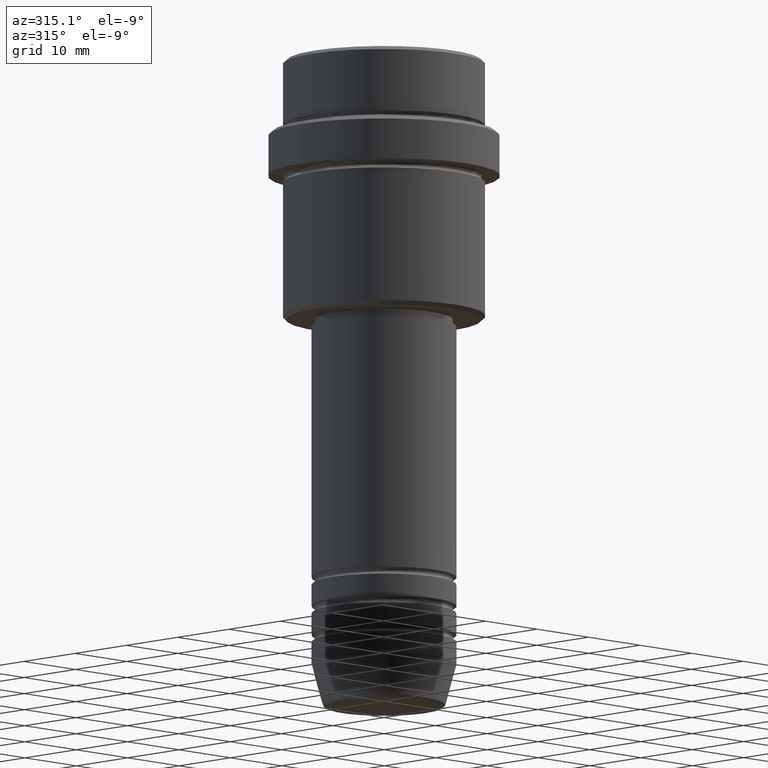
[diagram: clean part render]
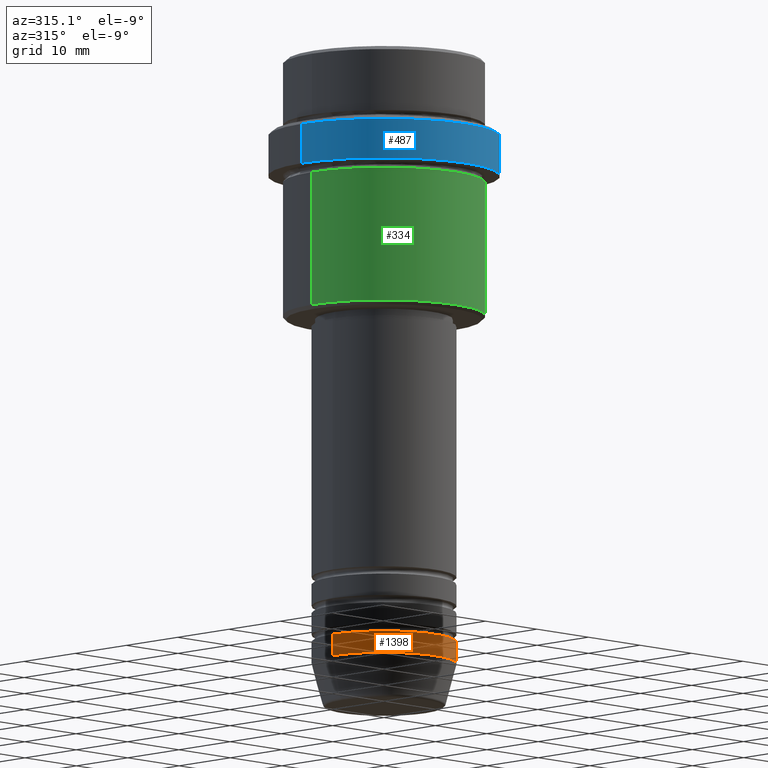
[diagram: same view with three faces highlighted in distinct colors, each labeled with its STEP entity id]
A machine part, auxiliary view with three faces highlighted in distinct colors.
Their STEP definitions:

[orange] entity #1398 — the highlighted cylindrical surface (partial cylindrical patch) has radius 10 mm, axis along (-0, -0, 1).
#60 = FACE_OUTER_BOUND ( 'NONE', #998, .T. ) ;
#61 = ORIENTED_EDGE ( 'NONE', *, *, #520, .T. ) ;
#113 = DIRECTION ( 'NONE',  ( 1.000000000000000000, 0.000000000000000000, 0.000000000000000000 ) ) ;
#122 = EDGE_CURVE ( 'NONE', #157, #1201, #692, .T. ) ;
#143 = EDGE_CURVE ( 'NONE', #157, #1251, #562, .T. ) ;
#157 = VERTEX_POINT ( 'NONE', #582 ) ;
#185 = DIRECTION ( 'NONE',  ( 1.000000000000000000, 0.000000000000000000, 0.000000000000000000 ) ) ;
#197 = VECTOR ( 'NONE', #1012, 1000.000000000000000 ) ;
#495 = CYLINDRICAL_SURFACE ( 'NONE', #849, 10.00000000000000000 ) ;
#505 = ORIENTED_EDGE ( 'NONE', *, *, #1019, .F. ) ;
#520 = EDGE_CURVE ( 'NONE', #1201, #704, #608, .T. ) ;
#562 = LINE ( 'NONE', #589, #741 ) ;
#576 = CIRCLE ( 'NONE', #746, 10.00000000000000000 ) ;
#582 = CARTESIAN_POINT ( 'NONE',  ( -10.00000000000000000, 1.224646799147353256E-15, -84.00000000000000000 ) ) ;
#589 = CARTESIAN_POINT ( 'NONE',  ( -10.00000000000000000, 1.224646799147353256E-15, 0.000000000000000000 ) ) ;
#608 = LINE ( 'NONE', #1121, #197 ) ;
#609 = CARTESIAN_POINT ( 'NONE',  ( 0.000000000000000000, 0.000000000000000000, 0.000000000000000000 ) ) ;
#632 = CARTESIAN_POINT ( 'NONE',  ( 10.00000000000000000, 0.000000000000000000, -81.00000000000000000 ) ) ;
#667 = CARTESIAN_POINT ( 'NONE',  ( 0.000000000000000000, 0.000000000000000000, -84.00000000000000000 ) ) ;
#692 = CIRCLE ( 'NONE', #804, 10.00000000000000000 ) ;
#698 = DIRECTION ( 'NONE',  ( 1.000000000000000000, 0.000000000000000000, 0.000000000000000000 ) ) ;
#704 = VERTEX_POINT ( 'NONE', #632 ) ;
#741 = VECTOR ( 'NONE', #809, 1000.000000000000000 ) ;
#746 = AXIS2_PLACEMENT_3D ( 'NONE', #865, #1301, #698 ) ;
#804 = AXIS2_PLACEMENT_3D ( 'NONE', #667, #1190, #113 ) ;
#809 = DIRECTION ( 'NONE',  ( -0.000000000000000000, -0.000000000000000000, 1.000000000000000000 ) ) ;
#849 = AXIS2_PLACEMENT_3D ( 'NONE', #609, #1327, #185 ) ;
#865 = CARTESIAN_POINT ( 'NONE',  ( 0.000000000000000000, 0.000000000000000000, -81.00000000000000000 ) ) ;
#941 = CARTESIAN_POINT ( 'NONE',  ( 10.00000000000000000, 0.000000000000000000, -84.00000000000000000 ) ) ;
#998 = EDGE_LOOP ( 'NONE', ( #1162, #1144, #61, #505 ) ) ;
#1012 = DIRECTION ( 'NONE',  ( -0.000000000000000000, -0.000000000000000000, 1.000000000000000000 ) ) ;
#1019 = EDGE_CURVE ( 'NONE', #1251, #704, #576, .T. ) ;
#1086 = CARTESIAN_POINT ( 'NONE',  ( -10.00000000000000000, 1.224646799147353256E-15, -81.00000000000000000 ) ) ;
#1121 = CARTESIAN_POINT ( 'NONE',  ( 10.00000000000000000, 0.000000000000000000, 0.000000000000000000 ) ) ;
#1144 = ORIENTED_EDGE ( 'NONE', *, *, #122, .T. ) ;
#1162 = ORIENTED_EDGE ( 'NONE', *, *, #143, .F. ) ;
#1190 = DIRECTION ( 'NONE',  ( -0.000000000000000000, -0.000000000000000000, 1.000000000000000000 ) ) ;
#1201 = VERTEX_POINT ( 'NONE', #941 ) ;
#1251 = VERTEX_POINT ( 'NONE', #1086 ) ;
#1301 = DIRECTION ( 'NONE',  ( -0.000000000000000000, -0.000000000000000000, 1.000000000000000000 ) ) ;
#1327 = DIRECTION ( 'NONE',  ( -0.000000000000000000, -0.000000000000000000, 1.000000000000000000 ) ) ;
#1398 = ADVANCED_FACE ( 'NONE', ( #60 ), #495, .T. ) ;

[blue] entity #487 — the highlighted cylindrical surface (partial cylindrical patch) has radius 16 mm, axis along (-0, -0, 1).
#7 = AXIS2_PLACEMENT_3D ( 'NONE', #1011, #465, #700 ) ;
#41 = VERTEX_POINT ( 'NONE', #992 ) ;
#78 = EDGE_CURVE ( 'NONE', #171, #1296, #355, .T. ) ;
#147 = VECTOR ( 'NONE', #434, 1000.000000000000000 ) ;
#149 = AXIS2_PLACEMENT_3D ( 'NONE', #921, #1260, #934 ) ;
#171 = VERTEX_POINT ( 'NONE', #281 ) ;
#181 = CARTESIAN_POINT ( 'NONE',  ( -15.99999999999999289, 1.959434878635764343E-15, -16.00000000000000000 ) ) ;
#228 = CARTESIAN_POINT ( 'NONE',  ( 15.99999999999999289, 0.000000000000000000, 0.000000000000000000 ) ) ;
#252 = DIRECTION ( 'NONE',  ( 0.000000000000000000, 0.000000000000000000, -1.000000000000000000 ) ) ;
#281 = CARTESIAN_POINT ( 'NONE',  ( 15.99999999999999289, 0.000000000000000000, -16.00000000000000000 ) ) ;
#353 = VECTOR ( 'NONE', #585, 1000.000000000000000 ) ;
#355 = LINE ( 'NONE', #228, #147 ) ;
#381 = ORIENTED_EDGE ( 'NONE', *, *, #878, .F. ) ;
#401 = ORIENTED_EDGE ( 'NONE', *, *, #930, .T. ) ;
#434 = DIRECTION ( 'NONE',  ( -0.000000000000000000, -0.000000000000000000, 1.000000000000000000 ) ) ;
#439 = CIRCLE ( 'NONE', #7, 15.99999999999999289 ) ;
#465 = DIRECTION ( 'NONE',  ( -0.000000000000000000, -0.000000000000000000, 1.000000000000000000 ) ) ;
#487 = ADVANCED_FACE ( 'NONE', ( #1378 ), #1356, .T. ) ;
#545 = CARTESIAN_POINT ( 'NONE',  ( 15.99999999999999289, 0.000000000000000000, -10.49999999999998224 ) ) ;
#552 = CIRCLE ( 'NONE', #1262, 15.99999999999999289 ) ;
#585 = DIRECTION ( 'NONE',  ( -0.000000000000000000, -0.000000000000000000, 1.000000000000000000 ) ) ;
#700 = DIRECTION ( 'NONE',  ( 1.000000000000000000, 0.000000000000000000, 0.000000000000000000 ) ) ;
#712 = EDGE_CURVE ( 'NONE', #1296, #41, #552, .T. ) ;
#878 = EDGE_CURVE ( 'NONE', #1226, #41, #1223, .T. ) ;
#921 = CARTESIAN_POINT ( 'NONE',  ( 0.000000000000000000, 0.000000000000000000, 0.000000000000000000 ) ) ;
#930 = EDGE_CURVE ( 'NONE', #1226, #171, #439, .T. ) ;
#934 = DIRECTION ( 'NONE',  ( 1.000000000000000000, 0.000000000000000000, 0.000000000000000000 ) ) ;
#969 = CARTESIAN_POINT ( 'NONE',  ( 0.000000000000000000, 0.000000000000000000, -10.49999999999998224 ) ) ;
#992 = CARTESIAN_POINT ( 'NONE',  ( -15.99999999999999289, 1.959434878635764343E-15, -10.49999999999998224 ) ) ;
#1011 = CARTESIAN_POINT ( 'NONE',  ( 0.000000000000000000, 0.000000000000000000, -16.00000000000000000 ) ) ;
#1099 = DIRECTION ( 'NONE',  ( 1.000000000000000000, 0.000000000000000000, 0.000000000000000000 ) ) ;
#1151 = CARTESIAN_POINT ( 'NONE',  ( -15.99999999999999289, 1.959434878635764343E-15, 0.000000000000000000 ) ) ;
#1186 = ORIENTED_EDGE ( 'NONE', *, *, #78, .T. ) ;
#1223 = LINE ( 'NONE', #1151, #353 ) ;
#1226 = VERTEX_POINT ( 'NONE', #181 ) ;
#1260 = DIRECTION ( 'NONE',  ( -0.000000000000000000, -0.000000000000000000, 1.000000000000000000 ) ) ;
#1262 = AXIS2_PLACEMENT_3D ( 'NONE', #969, #252, #1099 ) ;
#1296 = VERTEX_POINT ( 'NONE', #545 ) ;
#1326 = EDGE_LOOP ( 'NONE', ( #381, #401, #1186, #1358 ) ) ;
#1356 = CYLINDRICAL_SURFACE ( 'NONE', #149, 15.99999999999999289 ) ;
#1358 = ORIENTED_EDGE ( 'NONE', *, *, #712, .T. ) ;
#1378 = FACE_OUTER_BOUND ( 'NONE', #1326, .T. ) ;

[green] entity #334 — the highlighted cylindrical surface (partial cylindrical patch) has radius 14 mm, axis along (-0, -0, 1).
#108 = EDGE_CURVE ( 'NONE', #308, #361, #1214, .T. ) ;
#145 = VERTEX_POINT ( 'NONE', #1219 ) ;
#186 = CARTESIAN_POINT ( 'NONE',  ( 0.000000000000000000, 0.000000000000000000, 0.000000000000000000 ) ) ;
#233 = CARTESIAN_POINT ( 'NONE',  ( 0.000000000000000000, 0.000000000000000000, -35.49999999999998579 ) ) ;
#243 = AXIS2_PLACEMENT_3D ( 'NONE', #186, #522, #740 ) ;
#253 = DIRECTION ( 'NONE',  ( -0.000000000000000000, -0.000000000000000000, 1.000000000000000000 ) ) ;
#258 = ORIENTED_EDGE ( 'NONE', *, *, #1233, .T. ) ;
#308 = VERTEX_POINT ( 'NONE', #1129 ) ;
#334 = ADVANCED_FACE ( 'NONE', ( #616 ), #1381, .T. ) ;
#338 = LINE ( 'NONE', #676, #1007 ) ;
#361 = VERTEX_POINT ( 'NONE', #1404 ) ;
#378 = CARTESIAN_POINT ( 'NONE',  ( 13.99999999999999467, 0.000000000000000000, -17.00000000000000355 ) ) ;
#389 = DIRECTION ( 'NONE',  ( 1.000000000000000000, 0.000000000000000000, 0.000000000000000000 ) ) ;
#522 = DIRECTION ( 'NONE',  ( -0.000000000000000000, -0.000000000000000000, 1.000000000000000000 ) ) ;
#588 = ORIENTED_EDGE ( 'NONE', *, *, #108, .F. ) ;
#599 = DIRECTION ( 'NONE',  ( -0.000000000000000000, -0.000000000000000000, 1.000000000000000000 ) ) ;
#616 = FACE_OUTER_BOUND ( 'NONE', #908, .T. ) ;
#660 = DIRECTION ( 'NONE',  ( -1.000000000000000000, 0.000000000000000000, 0.000000000000000000 ) ) ;
#676 = CARTESIAN_POINT ( 'NONE',  ( 13.99999999999999822, 0.000000000000000000, 0.000000000000000000 ) ) ;
#740 = DIRECTION ( 'NONE',  ( 1.000000000000000000, 0.000000000000000000, 0.000000000000000000 ) ) ;
#764 = VECTOR ( 'NONE', #253, 1000.000000000000000 ) ;
#868 = VERTEX_POINT ( 'NONE', #378 ) ;
#908 = EDGE_LOOP ( 'NONE', ( #588, #258, #990, #1106 ) ) ;
#915 = CIRCLE ( 'NONE', #1030, 13.99999999999999467 ) ;
#978 = DIRECTION ( 'NONE',  ( -0.000000000000000000, -0.000000000000000000, 1.000000000000000000 ) ) ;
#979 = CARTESIAN_POINT ( 'NONE',  ( -13.99999999999999822, 1.714505518806294441E-15, 0.000000000000000000 ) ) ;
#990 = ORIENTED_EDGE ( 'NONE', *, *, #1311, .T. ) ;
#1007 = VECTOR ( 'NONE', #1202, 1000.000000000000000 ) ;
#1030 = AXIS2_PLACEMENT_3D ( 'NONE', #1367, #599, #389 ) ;
#1040 = EDGE_CURVE ( 'NONE', #361, #868, #915, .T. ) ;
#1106 = ORIENTED_EDGE ( 'NONE', *, *, #1040, .F. ) ;
#1129 = CARTESIAN_POINT ( 'NONE',  ( -13.99999999999999822, 1.714505518806294441E-15, -35.49999999999998579 ) ) ;
#1202 = DIRECTION ( 'NONE',  ( -0.000000000000000000, -0.000000000000000000, 1.000000000000000000 ) ) ;
#1214 = LINE ( 'NONE', #979, #764 ) ;
#1219 = CARTESIAN_POINT ( 'NONE',  ( 13.99999999999999822, 0.000000000000000000, -35.49999999999998579 ) ) ;
#1233 = EDGE_CURVE ( 'NONE', #308, #145, #1328, .T. ) ;
#1311 = EDGE_CURVE ( 'NONE', #145, #868, #338, .T. ) ;
#1328 = CIRCLE ( 'NONE', #1380, 13.99999999999999822 ) ;
#1367 = CARTESIAN_POINT ( 'NONE',  ( 0.000000000000000000, 0.000000000000000000, -17.00000000000000355 ) ) ;
#1380 = AXIS2_PLACEMENT_3D ( 'NONE', #233, #978, #660 ) ;
#1381 = CYLINDRICAL_SURFACE ( 'NONE', #243, 13.99999999999999822 ) ;
#1404 = CARTESIAN_POINT ( 'NONE',  ( -13.99999999999999467, 1.714505518806294244E-15, -17.00000000000000355 ) ) ;